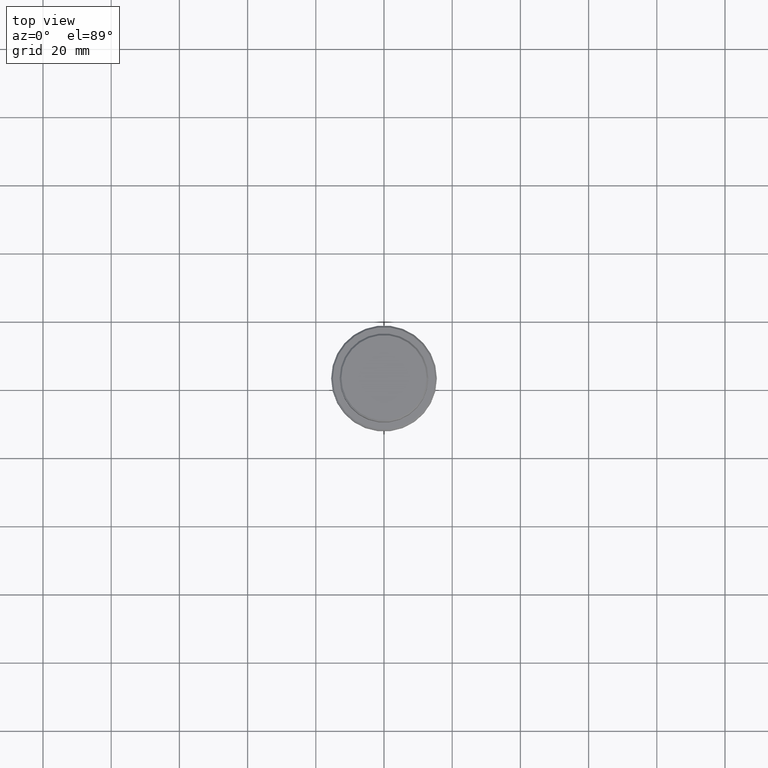
[diagram: clean part render]
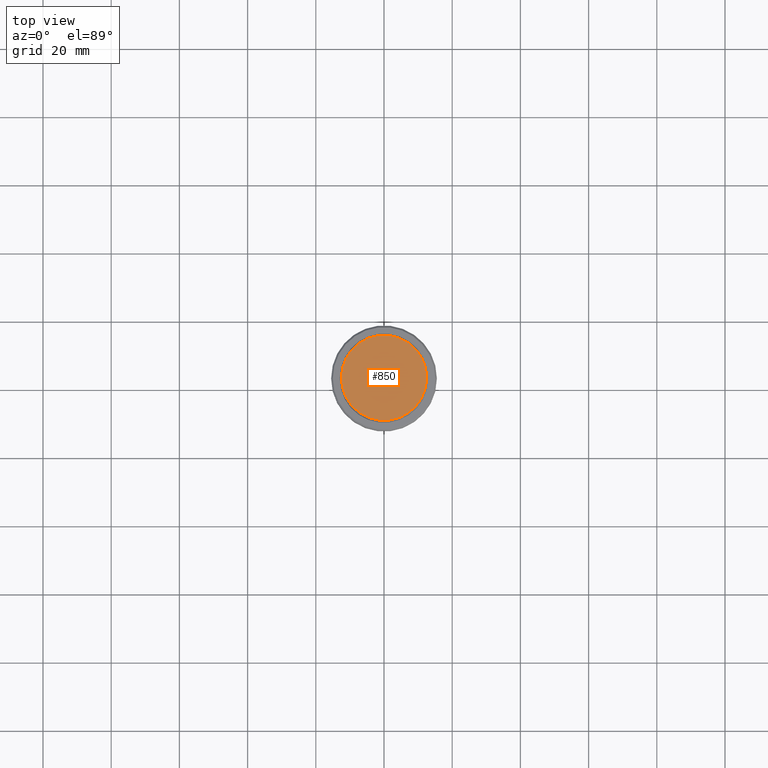
[diagram: same view with one face highlighted and labeled with its STEP entity id]
A machine part, top view. The second image highlights one B-rep face of the part: STEP entity #850.
In plain terms, the highlighted planar face has unit normal (0, -0, 1).
Its self-contained STEP definition (entity closure, byte-faithful):
#19 = PLANE ( 'NONE',  #972 ) ;
#145 = DIRECTION ( 'NONE',  ( 0.000000000000000000, -0.000000000000000000, 1.000000000000000000 ) ) ;
#283 = DIRECTION ( 'NONE',  ( -0.000000000000000000, -0.000000000000000000, 1.000000000000000000 ) ) ;
#451 = CARTESIAN_POINT ( 'NONE',  ( 12.49999999999998579, 1.561424668912874125E-15, 0.000000000000000000 ) ) ;
#507 = ORIENTED_EDGE ( 'NONE', *, *, #514, .T. ) ;
#514 = EDGE_CURVE ( 'NONE', #1273, #927, #1012, .T. ) ;
#594 = AXIS2_PLACEMENT_3D ( 'NONE', #671, #806, #1325 ) ;
#636 = DIRECTION ( 'NONE',  ( 1.000000000000000000, 0.000000000000000000, 0.000000000000000000 ) ) ;
#671 = CARTESIAN_POINT ( 'NONE',  ( 0.000000000000000000, 0.000000000000000000, 0.000000000000000000 ) ) ;
#682 = CARTESIAN_POINT ( 'NONE',  ( 0.000000000000000000, 0.000000000000000000, 0.000000000000000000 ) ) ;
#735 = CARTESIAN_POINT ( 'NONE',  ( 0.000000000000000000, 0.000000000000000000, 0.000000000000000000 ) ) ;
#781 = AXIS2_PLACEMENT_3D ( 'NONE', #735, #283, #636 ) ;
#806 = DIRECTION ( 'NONE',  ( -0.000000000000000000, -0.000000000000000000, 1.000000000000000000 ) ) ;
#828 = CARTESIAN_POINT ( 'NONE',  ( -12.49999999999998579, 0.000000000000000000, 0.000000000000000000 ) ) ;
#850 = ADVANCED_FACE ( 'NONE', ( #1014 ), #19, .T. ) ;
#914 = DIRECTION ( 'NONE',  ( 1.000000000000000000, 0.000000000000000000, 0.000000000000000000 ) ) ;
#927 = VERTEX_POINT ( 'NONE', #828 ) ;
#972 = AXIS2_PLACEMENT_3D ( 'NONE', #682, #145, #914 ) ;
#1012 = CIRCLE ( 'NONE', #781, 12.49999999999998579 ) ;
#1014 = FACE_OUTER_BOUND ( 'NONE', #1147, .T. ) ;
#1147 = EDGE_LOOP ( 'NONE', ( #1333, #507 ) ) ;
#1204 = CIRCLE ( 'NONE', #594, 12.49999999999998579 ) ;
#1273 = VERTEX_POINT ( 'NONE', #451 ) ;
#1291 = EDGE_CURVE ( 'NONE', #927, #1273, #1204, .T. ) ;
#1325 = DIRECTION ( 'NONE',  ( 1.000000000000000000, 0.000000000000000000, 0.000000000000000000 ) ) ;
#1333 = ORIENTED_EDGE ( 'NONE', *, *, #1291, .T. ) ;